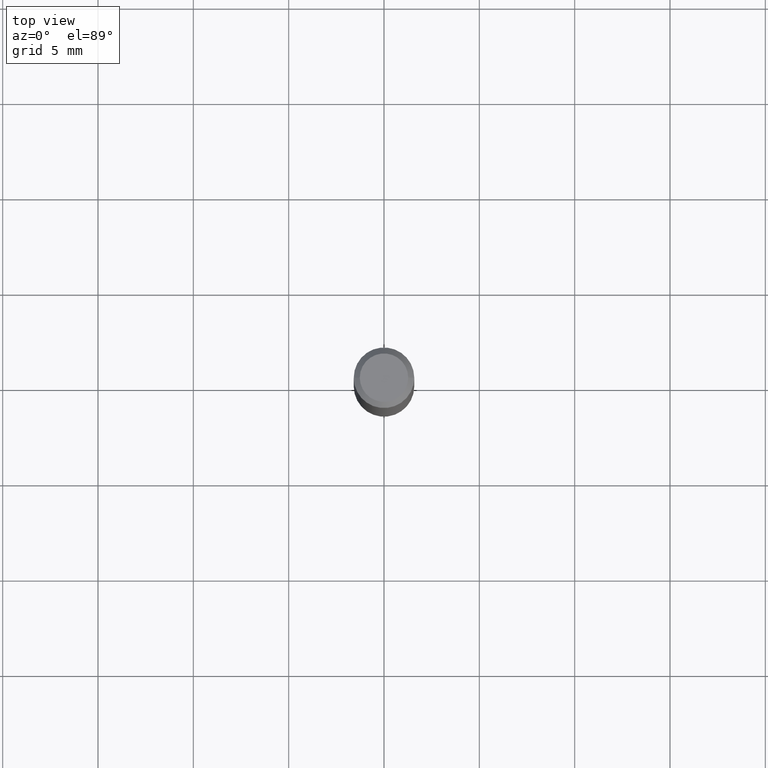
[diagram: clean part render]
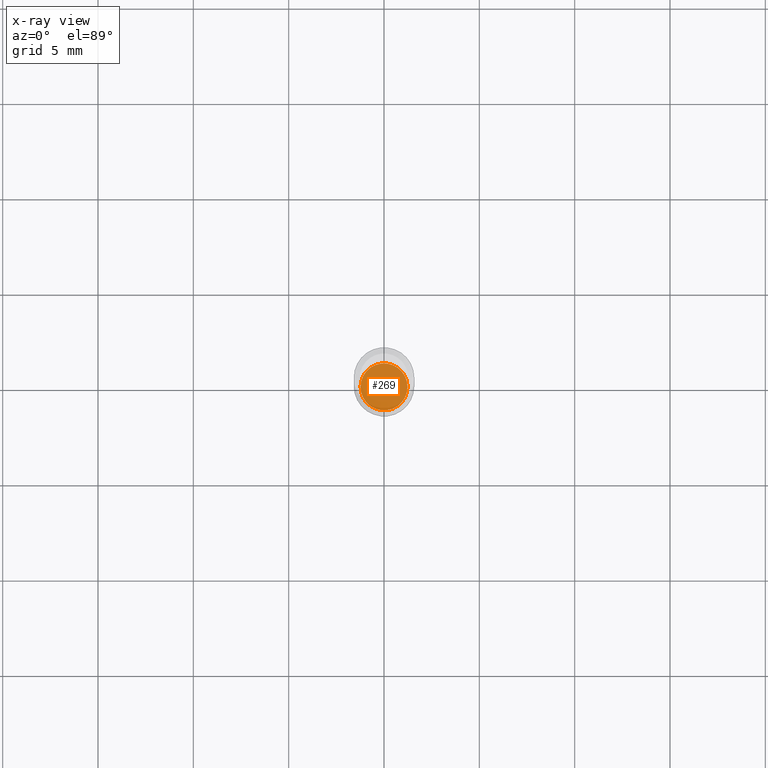
[diagram: x-ray — body ghosted, one internal face saturated and labeled with its STEP entity id]
A machine part, top view, then the same camera in x-ray: the body is ghosted and one INTERNAL B-rep face — a face not visible from any outside direction — is saturated and labeled: STEP entity #269.
In plain terms, the highlighted planar face has unit normal (-0, 0, 1).
Its self-contained STEP definition (entity closure, byte-faithful):
#1 = FACE_OUTER_BOUND ( 'NONE', #95, .T. ) ;
#20 = AXIS2_PLACEMENT_3D ( 'NONE', #452, #284, #380 ) ;
#41 = PLANE ( 'NONE',  #479 ) ;
#93 = ORIENTED_EDGE ( 'NONE', *, *, #330, .F. ) ;
#95 = EDGE_LOOP ( 'NONE', ( #253, #93 ) ) ;
#105 = DIRECTION ( 'NONE',  ( 1.000000000000000000, -6.982962677686261977E-15, 0.000000000000000000 ) ) ;
#114 = CARTESIAN_POINT ( 'NONE',  ( 2.690015686803650369E-29, -3.840629472727460101E-15, -1.100000000000000089 ) ) ;
#138 = CARTESIAN_POINT ( 'NONE',  ( -0.04850000000000000144, -3.493367018709700793E-15, -1.100000000000000089 ) ) ;
#157 = CARTESIAN_POINT ( 'NONE',  ( 0.04850000000000000144, -4.179303162595243627E-15, -1.100000000000000089 ) ) ;
#207 = VERTEX_POINT ( 'NONE', #138 ) ;
#253 = ORIENTED_EDGE ( 'NONE', *, *, #474, .F. ) ;
#261 = DIRECTION ( 'NONE',  ( -2.445468806185136597E-29, 3.491481338843145583E-15, 1.000000000000000000 ) ) ;
#269 = ADVANCED_FACE ( 'NONE', ( #1 ), #41, .F. ) ;
#270 = DIRECTION ( 'NONE',  ( -2.438088387897960049E-29, 3.491481338843145188E-15, 1.000000000000000000 ) ) ;
#284 = DIRECTION ( 'NONE',  ( -2.445468806185136597E-29, 3.491481338843145583E-15, 1.000000000000000000 ) ) ;
#297 = VERTEX_POINT ( 'NONE', #157 ) ;
#320 = AXIS2_PLACEMENT_3D ( 'NONE', #114, #261, #105 ) ;
#330 = EDGE_CURVE ( 'NONE', #207, #297, #369, .T. ) ;
#369 = CIRCLE ( 'NONE', #20, 0.04850000000000000144 ) ;
#375 = DIRECTION ( 'NONE',  ( 1.000000000000000000, -6.982962677686265922E-15, 4.876176775795935793E-29 ) ) ;
#380 = DIRECTION ( 'NONE',  ( 1.000000000000000000, -6.982962677686261977E-15, 0.000000000000000000 ) ) ;
#397 = CIRCLE ( 'NONE', #320, 0.04850000000000000144 ) ;
#415 = CARTESIAN_POINT ( 'NONE',  ( 2.690015686803650369E-29, -3.840629472727460101E-15, -1.100000000000000089 ) ) ;
#452 = CARTESIAN_POINT ( 'NONE',  ( 2.690015686803650369E-29, -3.840629472727460101E-15, -1.100000000000000089 ) ) ;
#474 = EDGE_CURVE ( 'NONE', #297, #207, #397, .T. ) ;
#479 = AXIS2_PLACEMENT_3D ( 'NONE', #415, #270, #375 ) ;